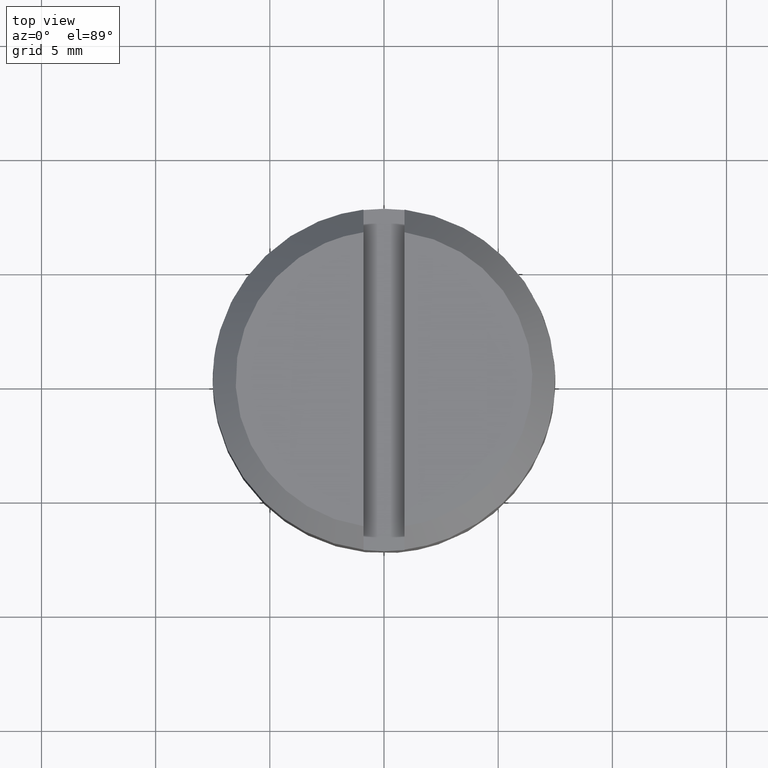
[diagram: clean part render]
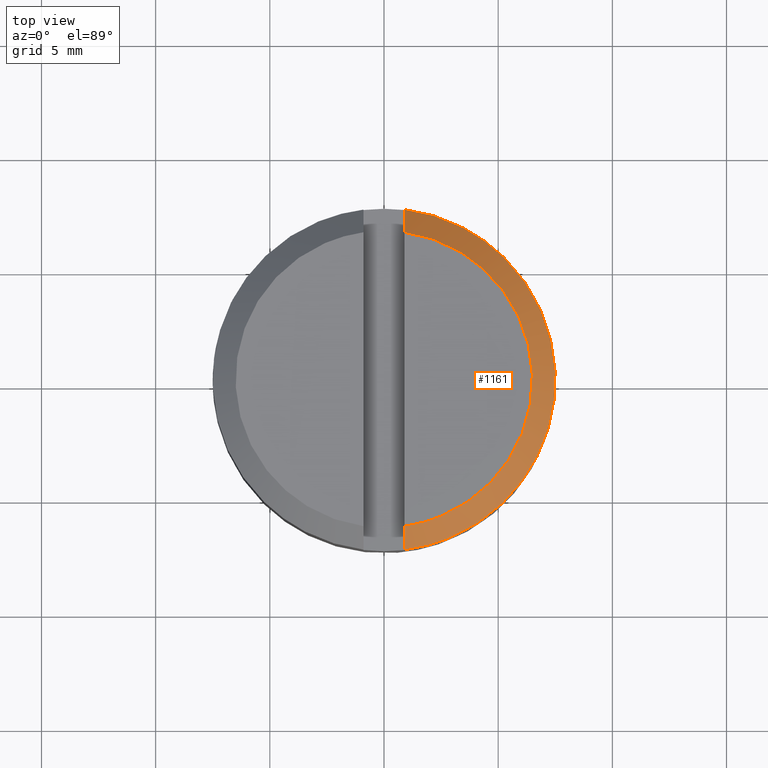
[diagram: same view with one face highlighted and labeled with its STEP entity id]
A machine part, top view. The second image highlights one B-rep face of the part: STEP entity #1161.
In plain terms, the highlighted face is a freeform B-spline surface patch.
Its self-contained STEP definition (entity closure, byte-faithful):
#975=CARTESIAN_POINT('',(5.246736126367333,5.359268608706940,6.999999999997387));
#976=VERTEX_POINT('',#975);
#982=CARTESIAN_POINT('',(0.899999999999984,-7.445804187594560,6.999999999997391));
#983=VERTEX_POINT('',#982);
#984=CARTESIAN_POINT('',(5.246736126367334,5.359268608706940,6.999999999997389));
#985=CARTESIAN_POINT('',(7.499999999999979,3.153318164495249,6.999999999997391));
#986=CARTESIAN_POINT('',(7.499999999999978,0.0,6.999999999997391));
#987=CARTESIAN_POINT('',(7.499999999999978,-6.648039453209386,6.999999999997391));
#988=CARTESIAN_POINT('',(0.899999999999979,-7.445804187594514,6.999999999997391));
#996=(BOUNDED_CURVE()B_SPLINE_CURVE(2,(#984,#985,#986,#987,#988),.UNSPECIFIED.,.F.,.U.)B_SPLINE_CURVE_WITH_KNOTS((3,2,3),(0.226679136802261,0.500000000000000,1.0),.UNSPECIFIED.)CURVE()GEOMETRIC_REPRESENTATION_ITEM()RATIONAL_B_SPLINE_CURVE((0.875260723575286,0.862427484301822,1.0,0.748331477354788,1.0))REPRESENTATION_ITEM(''));
#997=EDGE_CURVE('',#976,#983,#996,.T.);
#1041=CARTESIAN_POINT('',(0.899999999999984,7.445804187594570,6.999999999997380));
#1042=VERTEX_POINT('',#1041);
#1048=CARTESIAN_POINT('',(0.899999999999984,7.445804187594570,6.999999999997380));
#1049=CARTESIAN_POINT('',(3.427509727349803,7.140295380580146,6.999999999997383));
#1050=CARTESIAN_POINT('',(5.246736126367346,5.359268608706953,6.999999999997386));
#1058=(BOUNDED_CURVE()B_SPLINE_CURVE(2,(#1048,#1049,#1050),.UNSPECIFIED.,.F.,.U.)B_SPLINE_CURVE_WITH_KNOTS((3,3),(0.0,0.226679136802261),.UNSPECIFIED.)CURVE()GEOMETRIC_REPRESENTATION_ITEM()RATIONAL_B_SPLINE_CURVE((1.0,0.885903993052966,0.875260723575286))REPRESENTATION_ITEM(''));
#1059=EDGE_CURVE('',#1042,#976,#1058,.T.);
#1072=CARTESIAN_POINT('',(0.899999999999984,-6.437390775772660,7.999999999999719));
#1073=VERTEX_POINT('',#1072);
#1074=CARTESIAN_POINT('',(0.899999999999984,-7.445804187594560,6.999999999997391));
#1075=CARTESIAN_POINT('',(0.899999999999984,-7.109850583502810,7.333519141446980));
#1076=CARTESIAN_POINT('',(0.899999999999984,-6.773750285482694,7.666890308169407));
#1077=CARTESIAN_POINT('',(0.899999999999984,-6.437390775772660,7.999999999999719));
#1078=B_SPLINE_CURVE_WITH_KNOTS('',3,(#1074,#1075,#1076,#1077),.UNSPECIFIED.,.F.,.U.,(4,4),(0.0,0.070808166643186),.UNSPECIFIED.);
#1079=EDGE_CURVE('',#983,#1073,#1078,.T.);
#1081=CARTESIAN_POINT('',(0.899999999999984,6.437390775772660,7.999999999999719));
#1082=VERTEX_POINT('',#1081);
#1088=CARTESIAN_POINT('',(0.899999999999984,6.437390775772660,7.999999999999719));
#1089=CARTESIAN_POINT('',(0.899999999999984,6.773750161947215,7.666890425771695));
#1090=CARTESIAN_POINT('',(0.899999999999984,7.109850490492798,7.333519248876078));
#1091=CARTESIAN_POINT('',(0.899999999999984,7.445804187594570,6.999999999997380));
#1092=B_SPLINE_CURVE_WITH_KNOTS('',3,(#1088,#1089,#1090,#1091),.UNSPECIFIED.,.F.,.U.,(4,4),(0.929162089459600,1.0),.UNSPECIFIED.);
#1093=EDGE_CURVE('',#1082,#1042,#1092,.T.);
#1106=CARTESIAN_POINT('',(0.899999999999984,6.437390775772660,7.999999999999719));
#1107=CARTESIAN_POINT('',(1.164046518936204,6.400481287653276,7.999999999999623));
#1108=CARTESIAN_POINT('',(1.747080768390056,6.282026947567024,7.999999999999409));
#1109=CARTESIAN_POINT('',(2.653057282908367,5.964159261985390,7.999999999999085));
#1110=CARTESIAN_POINT('',(3.508323649208541,5.500366401612318,7.999999999998797));
#1111=CARTESIAN_POINT('',(4.323423726207953,4.887003269308401,7.999999999998448));
#1112=CARTESIAN_POINT('',(5.004137519490569,4.191547921528891,7.999999999998359));
#1113=CARTESIAN_POINT('',(5.530107593766039,3.447326452910998,7.999999999997904));
#1114=CARTESIAN_POINT('',(5.874159480859784,2.805692603955089,7.999999999998146));
#1115=CARTESIAN_POINT('',(6.118135261026471,2.223973017045733,7.999999999997689));
#1116=CARTESIAN_POINT('',(6.338337600131269,1.517293528036432,7.999999999997859));
#1117=CARTESIAN_POINT('',(6.474668463027849,0.751522806004478,7.999999999997645));
#1118=CARTESIAN_POINT('',(6.510987994533219,-0.012179828932277,7.999999999997844));
#1119=CARTESIAN_POINT('',(6.471691138216046,-0.751217133979216,7.999999999997643));
#1120=CARTESIAN_POINT('',(6.325274755216318,-1.601246222053086,7.999999999997324));
#1121=CARTESIAN_POINT('',(6.037020314251251,-2.466396235423746,7.999999999999062));
#1122=CARTESIAN_POINT('',(5.664038350543110,-3.216419183112442,7.999999999995693));
#1123=CARTESIAN_POINT('',(5.196683517117705,-3.940320791865819,8.000000000001059));
#1124=CARTESIAN_POINT('',(4.599821602164393,-4.630326134537651,7.999999999996427));
#1125=CARTESIAN_POINT('',(3.847834201649861,-5.265023183087872,7.999999999997696));
#1126=CARTESIAN_POINT('',(3.086731315483822,-5.743469365829124,7.999999999998070));
#1127=CARTESIAN_POINT('',(2.112591833262325,-6.183380350265934,7.999999999997264));
#1128=CARTESIAN_POINT('',(1.368100385538988,-6.372039681056755,7.999999999997746));
#1129=CARTESIAN_POINT('',(0.899999999999984,-6.437390775772660,7.999999999999719));
#1130=B_SPLINE_CURVE_WITH_KNOTS('',3,(#1106,#1107,#1108,#1109,#1110,#1111,#1112,#1113,#1114,#1115,#1116,#1117,#1118,#1119,#1120,#1121,#1122,#1123,#1124,#1125,#1126,#1127,#1128,#1129),.UNSPECIFIED.,.F.,.U.,(4,1,1,1,1,1,1,1,1,1,1,1,1,1,1,1,1,1,1,1,1,4),(0.000000024167051,0.799842489408388,1.781462104108869,2.872170525197744,3.708369212849348,4.835427897302301,5.780698808296206,6.435118530683219,7.016830956573433,7.671241821316370,8.652880912061651,9.343634536083457,9.961701691302189,10.870618237373829,11.924960981509580,12.688450257641360,13.379223595748449,14.506282378894859,15.415200722720179,16.324118078863719,17.196679448045060,18.614574840735582),.UNSPECIFIED.);
#1131=EDGE_CURVE('',#1082,#1073,#1130,.T.);
#1136=CARTESIAN_POINT('',(0.720874403186359,-6.434746700127137,8.024999999999778));
#1137=CARTESIAN_POINT('',(0.837842537526115,-7.478840252535005,6.974374999997320));
#1138=CARTESIAN_POINT('',(6.617233401418598,-5.774187011936252,8.024999999999778));
#1139=CARTESIAN_POINT('',(7.690937006420277,-6.711099016481946,6.974374999997320));
#1140=CARTESIAN_POINT('',(6.473088890267473,0.157306130401698,8.024999999999778));
#1141=CARTESIAN_POINT('',(7.523403796114156,0.182830416618497,6.974374999997320));
#1142=CARTESIAN_POINT('',(6.328944379116347,6.088799272739649,8.024999999999778));
#1143=CARTESIAN_POINT('',(7.355870585808035,7.076759849718937,6.974374999997320));
#1144=CARTESIAN_POINT('',(0.407459337019359,6.462166965394978,8.024999999999778));
#1145=CARTESIAN_POINT('',(0.473573154155613,7.510709694049504,6.974374999997320));
#1153=(BOUNDED_SURFACE()B_SPLINE_SURFACE(1,2,((#1136,#1138,#1140,#1142,#1144),(#1137,#1139,#1141,#1143,#1145)),.UNSPECIFIED.,.F.,.F.,.U.)B_SPLINE_SURFACE_WITH_KNOTS((2,2),(3,2,3),(0.0,1.0),(0.0,11.706222025604729,23.412444051209469),.UNSPECIFIED.)GEOMETRIC_REPRESENTATION_ITEM()RATIONAL_B_SPLINE_SURFACE(((1.0,0.737277336810124,1.0,0.737277336810124,1.0),(1.0,0.737277336810124,1.0,0.737277336810124,1.0)))REPRESENTATION_ITEM('')SURFACE());
#1154=ORIENTED_EDGE('',*,*,#1079,.F.);
#1155=ORIENTED_EDGE('',*,*,#997,.F.);
#1156=ORIENTED_EDGE('',*,*,#1059,.F.);
#1157=ORIENTED_EDGE('',*,*,#1093,.F.);
#1158=ORIENTED_EDGE('',*,*,#1131,.T.);
#1159=EDGE_LOOP('',(#1154,#1155,#1156,#1157,#1158));
#1160=FACE_OUTER_BOUND('',#1159,.T.);
#1161=ADVANCED_FACE('',(#1160),#1153,.T.);